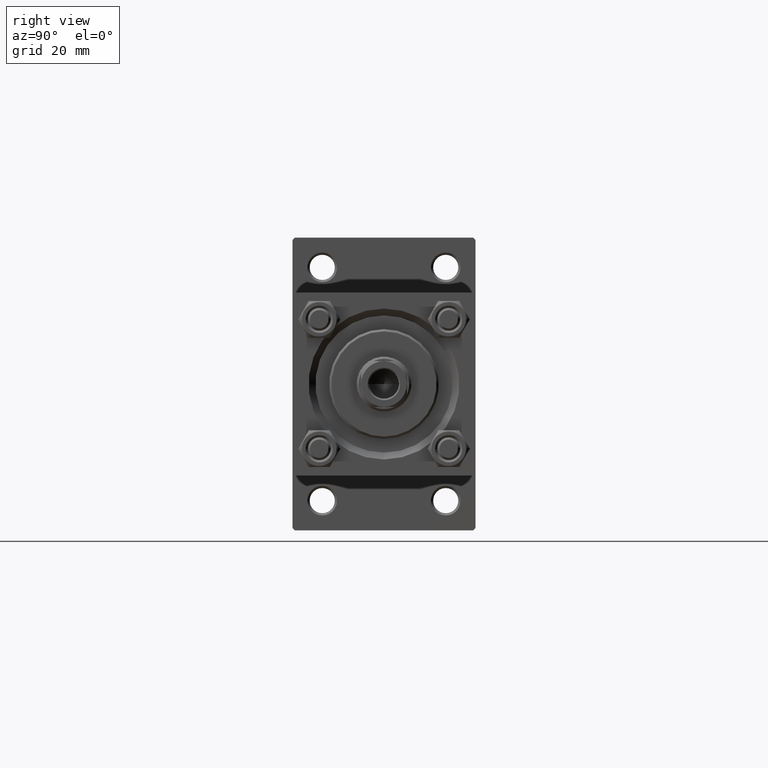
[diagram: clean part render]
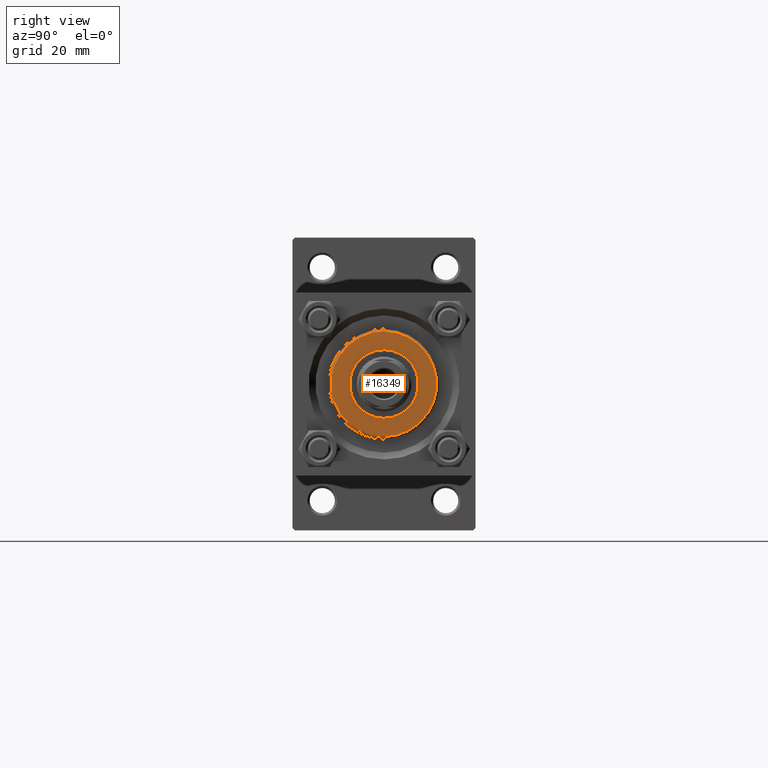
[diagram: same view with one face highlighted and labeled with its STEP entity id]
A machine part, right view. The second image highlights one B-rep face of the part: STEP entity #16349.
In plain terms, the highlighted planar face has unit normal (1, 0, 0).
Its self-contained STEP definition (entity closure, byte-faithful):
#189 = DIRECTION ( 'NONE',  ( 1.000000000000000000, 0.000000000000000000, 0.000000000000000000 ) ) ;
#204 = DIRECTION ( 'NONE',  ( 1.000000000000000000, 0.000000000000000000, -0.000000000000000000 ) ) ;
#2559 = CARTESIAN_POINT ( 'NONE',  ( -7.500000000000000888, 9.184850993605149917E-16, 35.70000000000000284 ) ) ;
#3542 = ORIENTED_EDGE ( 'NONE', *, *, #6486, .F. ) ;
#4332 = DIRECTION ( 'NONE',  ( 1.000000000000000000, 0.000000000000000000, 0.000000000000000000 ) ) ;
#5837 = CARTESIAN_POINT ( 'NONE',  ( 7.500000000000000888, 0.000000000000000000, 35.70000000000000284 ) ) ;
#6486 = EDGE_CURVE ( 'NONE', #41718, #37527, #18294, .T. ) ;
#6557 = ORIENTED_EDGE ( 'NONE', *, *, #26453, .T. ) ;
#8335 = DIRECTION ( 'NONE',  ( 1.000000000000000000, 0.000000000000000000, 0.000000000000000000 ) ) ;
#10743 = EDGE_LOOP ( 'NONE', ( #18470, #6557 ) ) ;
#11720 = DIRECTION ( 'NONE',  ( 0.000000000000000000, 0.000000000000000000, 1.000000000000000000 ) ) ;
#12522 = DIRECTION ( 'NONE',  ( 0.000000000000000000, 0.000000000000000000, 1.000000000000000000 ) ) ;
#16349 = ADVANCED_FACE ( 'NONE', ( #31478, #43331 ), #35001, .T. ) ;
#18294 = CIRCLE ( 'NONE', #23127, 7.500000000000000888 ) ;
#18470 = ORIENTED_EDGE ( 'NONE', *, *, #44535, .T. ) ;
#19880 = CARTESIAN_POINT ( 'NONE',  ( -11.49999999999999645, 0.000000000000000000, 35.70000000000000284 ) ) ;
#22226 = CARTESIAN_POINT ( 'NONE',  ( 11.49999999999999645, 1.438959988998139963E-15, 35.70000000000000284 ) ) ;
#23127 = AXIS2_PLACEMENT_3D ( 'NONE', #31056, #38884, #8335 ) ;
#26125 = DIRECTION ( 'NONE',  ( 1.000000000000000000, 0.000000000000000000, 0.000000000000000000 ) ) ;
#26453 = EDGE_CURVE ( 'NONE', #40946, #43367, #26858, .T. ) ;
#26554 = AXIS2_PLACEMENT_3D ( 'NONE', #38906, #42446, #4332 ) ;
#26591 = CIRCLE ( 'NONE', #45946, 11.49999999999999645 ) ;
#26858 = CIRCLE ( 'NONE', #30899, 11.49999999999999645 ) ;
#30899 = AXIS2_PLACEMENT_3D ( 'NONE', #34744, #12522, #189 ) ;
#31056 = CARTESIAN_POINT ( 'NONE',  ( 0.000000000000000000, 0.000000000000000000, 35.70000000000000284 ) ) ;
#31478 = FACE_BOUND ( 'NONE', #39074, .T. ) ;
#33195 = ORIENTED_EDGE ( 'NONE', *, *, #47299, .F. ) ;
#34595 = AXIS2_PLACEMENT_3D ( 'NONE', #39040, #46626, #204 ) ;
#34744 = CARTESIAN_POINT ( 'NONE',  ( 0.000000000000000000, 0.000000000000000000, 35.70000000000000284 ) ) ;
#35001 = PLANE ( 'NONE',  #34595 ) ;
#35397 = CIRCLE ( 'NONE', #26554, 7.500000000000000888 ) ;
#37527 = VERTEX_POINT ( 'NONE', #5837 ) ;
#38884 = DIRECTION ( 'NONE',  ( 0.000000000000000000, 0.000000000000000000, 1.000000000000000000 ) ) ;
#38906 = CARTESIAN_POINT ( 'NONE',  ( 0.000000000000000000, 0.000000000000000000, 35.70000000000000284 ) ) ;
#39040 = CARTESIAN_POINT ( 'NONE',  ( 0.000000000000000000, 0.000000000000000000, 35.70000000000000284 ) ) ;
#39074 = EDGE_LOOP ( 'NONE', ( #33195, #3542 ) ) ;
#40946 = VERTEX_POINT ( 'NONE', #22226 ) ;
#41718 = VERTEX_POINT ( 'NONE', #2559 ) ;
#42446 = DIRECTION ( 'NONE',  ( 0.000000000000000000, 0.000000000000000000, 1.000000000000000000 ) ) ;
#43331 = FACE_OUTER_BOUND ( 'NONE', #10743, .T. ) ;
#43367 = VERTEX_POINT ( 'NONE', #19880 ) ;
#44535 = EDGE_CURVE ( 'NONE', #43367, #40946, #26591, .T. ) ;
#45946 = AXIS2_PLACEMENT_3D ( 'NONE', #49610, #11720, #26125 ) ;
#46626 = DIRECTION ( 'NONE',  ( 0.000000000000000000, 0.000000000000000000, 1.000000000000000000 ) ) ;
#47299 = EDGE_CURVE ( 'NONE', #37527, #41718, #35397, .T. ) ;
#49610 = CARTESIAN_POINT ( 'NONE',  ( 0.000000000000000000, 0.000000000000000000, 35.70000000000000284 ) ) ;